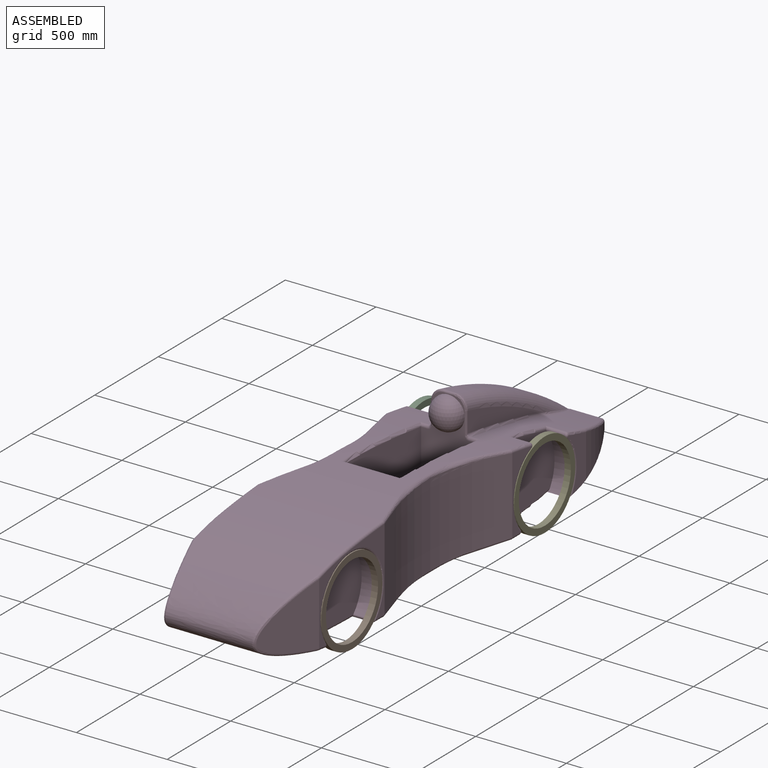
[diagram: assembled view]
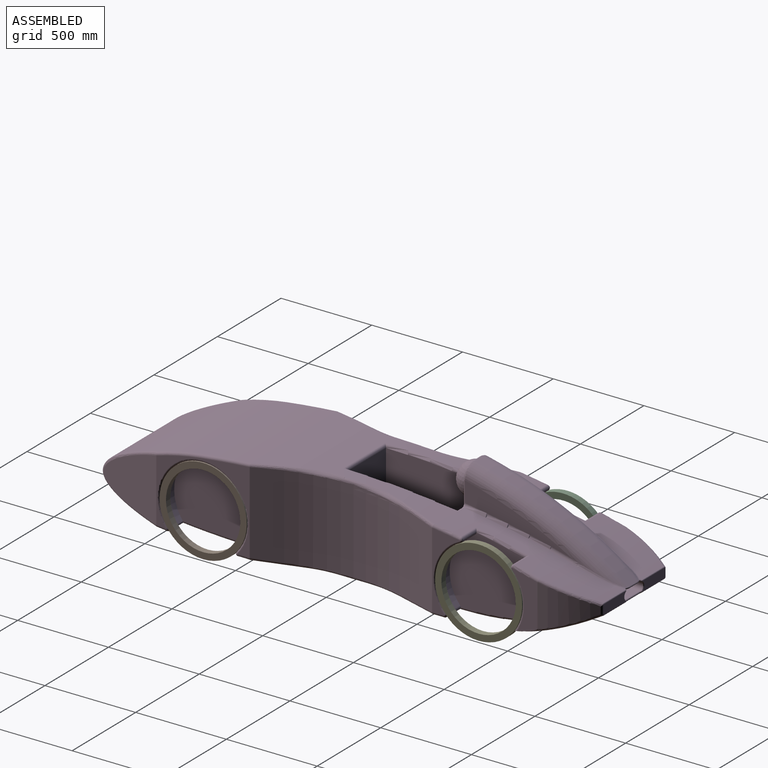
[diagram: assembled view, second angle]
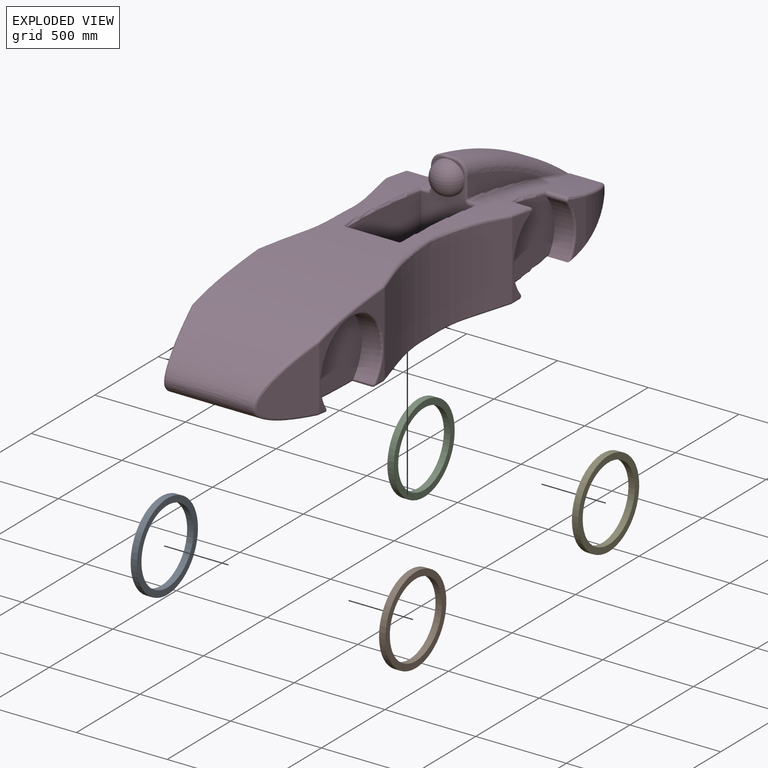
[diagram: exploded view]
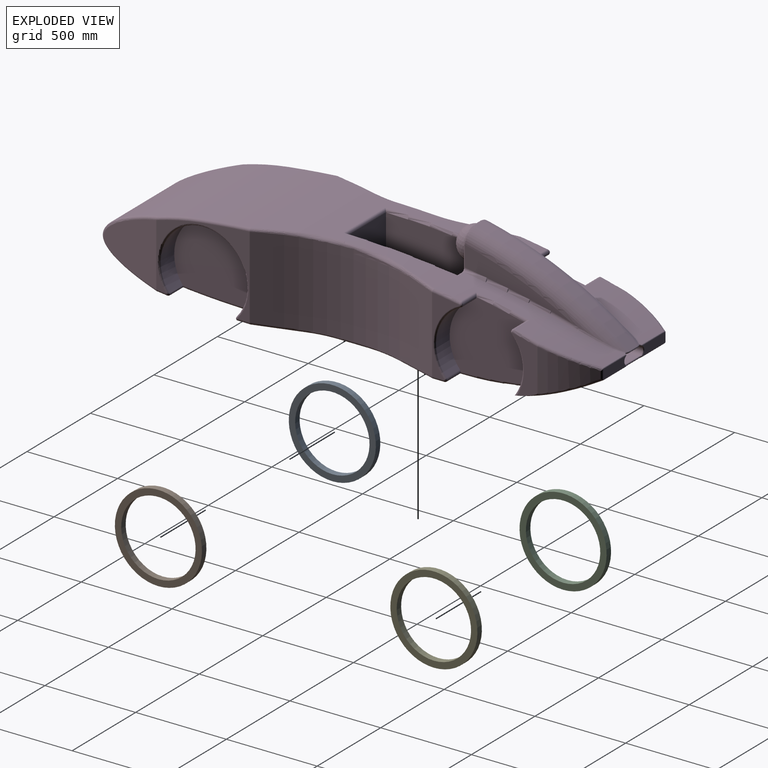
[diagram: exploded view, second angle]
ASSEMBLY  parts=5 mates=4
PART A: 4 faces, bbox 35x480x480 mm
  f0: cylinder r=205mm len=410mm, axis (-1,0,0), area 45081.9mm2, adj f2,f3
  f1: cylinder r=240mm len=480mm, axis (-1,0,0), area 52778.8mm2, adj f2,f3
  f2: plane 480x480mm, normal (1,0,0), area 48930.3mm2, adj f0,f1
  f3: plane 480x480mm, normal (-1,0,0), area 48930.3mm2, adj f0,f1
PART B: same geometry as A
PART C: same geometry as A
PART D: 210 faces, bbox 805.9x2862.7x834.4 mm
  f0: plane 178.41x52.82mm, normal (0,1,0), area 8788.2mm2, adj f128,f136,f141,f176,f179,f181
  f1: plane 178.41x52.82mm, normal (0,1,0), area 8788.2mm2, adj f129,f130,f137,f185,f187,f190
  f2: plane 180x92.58mm, normal (0,-1,0), area 2358.5mm2, adj f102,f103,f104,f105,f106,f122
  f3: cylinder r=4818.85mm len=2144.45mm, axis (-1,0,0), area 825983.9mm2, adj f5,f11,f12,f13,f15,f26,f27,f28
  f4: plane 306.64x139.59mm, normal (1,0,0), area 23866.4mm2, adj f11,f173,f174,f192,f193
  f5: cylinder r=1500mm len=670mm, axis (-1,0,0), area 261299mm2, adj f3,f6,f16,f29,f70,f75
  f6: extruded ~917.77x670mm, area 671919.7mm2, adj f5,f7,f17,f30,f68,f73,f78,f80
  f7: plane 1067.01x670mm, normal (0,0,-1), area 572183.1mm2, adj f6,f8,f81,f82,f83,f86,f87,f88
  f8: cylinder r=1691.26mm len=770.24mm, axis (-1,0,0), area 431236.4mm2, adj f7,f22,f35,f85,f96,f130,f132,f133
  f9: plane 510.99x451.65mm, normal (1,0,0), area 39733.7mm2, adj f12,f29,f30,f60,f71,f78,f152
  f10: plane 419.09x152.17mm, normal (1,0,0), area 16643.2mm2, adj f13,f54,f86,f169,f170,f171
  f11: torus R=4803.85mm, axis (1,0,0), area 3335.2mm2, adj f3,f4,f175,f191
  f12: torus R=4803.85mm, axis (1,0,0), area 6398.6mm2, adj f3,f9,f29,f59
  f13: torus R=4803.85mm, axis (1,0,0), area 3576.4mm2, adj f3,f10,f55,f172
  f14: plane 510.99x451.65mm, normal (-1,0,0), area 39733.7mm2, adj f15,f16,f17,f67,f76,f89,f157
  f15: torus R=4803.85mm, axis (-1,0,0), area 6398.6mm2, adj f3,f14,f16,f66
  f16: torus R=1485mm, axis (-1,0,0), area 5862.2mm2, adj f5,f14,f15,f77
  f17: bspline ~104.01x26.5mm, area 1281.6mm2, adj f6,f14,f74,f156
  f18: cylinder r=2192.05mm len=855.36mm, axis (-1,0,0), area 57023.5mm2, adj f52,f53,f104,f146
  f19: plane 491.28x300.41mm, normal (0,-1,0), area 121400.6mm2, adj f102,f106,f111,f113,f114,f115,f116,f120
  f20: plane 591.54x232.33mm, normal (1,0,0), area 39575.7mm2, adj f53,f106,f109
  f21: plane 480x393.83mm, normal (1,0,0), area 153385.1mm2, adj f22,f23,f26,f27,f28,f85,f87,f88
  f22: cylinder r=240mm len=303.96mm, axis (1,0,0), area 34684.2mm2, adj f8,f21,f26,f85,f173,f192
  f23: cylinder r=240mm len=373.05mm, axis (1,0,0), area 46383.6mm2, adj f21,f28,f88,f170
  f24: plane 480x404.06mm, normal (1,0,0), area 160054mm2, adj f25,f101,f150,f154
  f25: cylinder r=240mm len=480mm, axis (1,0,0), area 113911mm2, adj f24,f150,f151,f152,f153,f154
  f26: cylinder r=15mm len=120mm, axis (-1,0,0), area 4117mm2, adj f3,f21,f22,f27,f174,f175
  f27: torus R=4803.85mm, axis (1,0,0), area 6779.4mm2, adj f3,f21,f26,f28
  f28: cylinder r=15mm len=120mm, axis (1,0,0), area 4117mm2, adj f3,f21,f23,f27,f171,f172
  f29: torus R=1485mm, axis (1,0,0), area 5862.2mm2, adj f5,f9,f12,f72
  f30: bspline ~104.01x26.5mm, area 1281.6mm2, adj f6,f9,f69,f151
  f31: plane 306.64x139.59mm, normal (-1,0,0), area 23866.5mm2, adj f39,f165,f166,f183,f184
  f32: plane 419.09x152.17mm, normal (-1,0,0), area 16643.2mm2, adj f43,f61,f97,f161,f162,f163
  f33: plane 591.54x232.33mm, normal (-1,0,0), area 39575.7mm2, adj f52,f102,f108
  f34: plane 480x393.83mm, normal (-1,0,0), area 153385.1mm2, adj f35,f36,f40,f41,f42,f96,f98,f99
  f35: cylinder r=240mm len=303.96mm, axis (-1,0,0), area 34684.3mm2, adj f8,f34,f40,f96,f165,f184
  f36: cylinder r=240mm len=373.05mm, axis (-1,0,0), area 46383.6mm2, adj f34,f42,f99,f162
  f37: plane 480x404.06mm, normal (-1,0,0), area 160054mm2, adj f38,f100,f155,f159
  f38: cylinder r=240mm len=480mm, axis (-1,0,0), area 113911mm2, adj f37,f155,f156,f157,f158,f159
  f39: torus R=4803.85mm, axis (-1,0,0), area 3335.2mm2, adj f3,f31,f167,f180
  f40: cylinder r=15mm len=120mm, axis (1,0,0), area 4117mm2, adj f3,f34,f35,f41,f166,f167
  f41: torus R=4803.85mm, axis (-1,0,0), area 6779.4mm2, adj f3,f34,f40,f42
  f42: cylinder r=15mm len=120mm, axis (-1,0,0), area 4117mm2, adj f3,f34,f36,f41,f163,f164
  f43: torus R=4803.85mm, axis (-1,0,0), area 3576.4mm2, adj f3,f32,f62,f164
  f44: plane 355.74x344.56mm, normal (-0.97,-0.26,0), area 85237.4mm2, adj f73,f75,f76
  f45: plane 460.54x154.9mm, normal (-0.96,0.29,0), area 73840.6mm2, adj f65,f67,f91,f92,f197
  f46: plane 437.99x154.9mm, normal (-0.96,-0.29,0), area 69380.2mm2, adj f61,f63,f94,f198
  f47: cylinder r=714.03mm len=280.15mm, axis (0,0,-1), area 40354mm2, adj f178,f179,f183,f184
  f48: plane 355.74x344.56mm, normal (0.97,-0.26,0), area 85237.3mm2, adj f68,f70,f71
  f49: plane 437.99x154.9mm, normal (0.96,-0.29,0), area 69380.2mm2, adj f54,f56,f83,f204
  f50: plane 460.54x154.9mm, normal (0.96,0.29,0), area 73840.6mm2, adj f58,f60,f80,f81,f205
  f51: cylinder r=714.03mm len=280.15mm, axis (0,0,-1), area 40354mm2, adj f187,f188,f192,f193
  f52: torus R=2122.05mm, axis (-1,0,0), area 92490.6mm2, adj f18,f33,f103,f107,f148
  f53: torus R=2122.05mm, axis (1,0,0), area 92490.3mm2, adj f18,f20,f105,f110,f144
  f54: cylinder r=15mm len=419.09mm, axis (0,0,-1), area 1834.3mm2, adj f10,f49,f55,f84
  f55: sphere r=15mm, area 66.4mm2, adj f13,f54,f56
  f56: bspline ~579.25x187.02mm, area 5863.9mm2, adj f3,f49,f55,f207,f209
  f57: torus R=4803.85mm, axis (-1,0,0), area 3499.7mm2, adj f3,f208,f209
  f58: bspline ~581.51x187.66mm, area 5772.2mm2, adj f3,f50,f59,f206,f208
  f59: sphere r=15mm, area 66.2mm2, adj f12,f58,f60
  f60: cylinder r=15mm len=451.64mm, axis (0,0,1), area 1976.8mm2, adj f9,f50,f59,f79
  f61: cylinder r=15mm len=419.09mm, axis (0,0,1), area 1834.3mm2, adj f32,f46,f62,f95
  f62: sphere r=15mm, area 66.4mm2, adj f43,f61,f63
  f63: bspline ~579.25x187.02mm, area 5863.9mm2, adj f3,f46,f62,f200,f201
  f64: torus R=4803.85mm, axis (1,0,0), area 3499.7mm2, adj f3,f199,f201
  f65: bspline ~581.51x187.66mm, area 5772.2mm2, adj f3,f45,f66,f196,f199
  f66: sphere r=15mm, area 69.4mm2, adj f15,f65,f67
  f67: cylinder r=15mm len=451.64mm, axis (0,0,-1), area 1976.8mm2, adj f14,f45,f66,f90
  f68: bspline ~415.78x330.16mm, area 15663.3mm2, adj f6,f48,f69,f70
  f69: sphere r=15mm, area 55.9mm2, adj f30,f68,f71
  f70: bspline ~217.38x94.21mm, area 3394.4mm2, adj f5,f48,f68,f72
  f71: cylinder r=15mm len=344.55mm, axis (0,0,-1), area 1363.1mm2, adj f9,f48,f69,f72
  f72: sphere r=15mm, area 53.7mm2, adj f29,f70,f71
  f73: bspline ~415.78x329.23mm, area 15669.7mm2, adj f6,f44,f74,f75
  f74: sphere r=15mm, area 58mm2, adj f17,f73,f76
  f75: bspline ~217.38x94.21mm, area 3394.4mm2, adj f5,f44,f73,f77
  f76: cylinder r=15mm len=344.55mm, axis (0,0,1), area 1363.1mm2, adj f14,f44,f74,f77
  f77: sphere r=15mm, area 53.7mm2, adj f16,f75,f76
  f78: bspline ~144.05x16.22mm, area 1606.9mm2, adj f6,f9,f79,f153
  f79: sphere r=15mm, area 65.7mm2, adj f60,f78,f80
  f80: bspline ~122.7x49.92mm, area 895.9mm2, adj f6,f50,f79,f81
  f81: cylinder r=15mm len=300.89mm, axis (0.29,-0.96,0), area 4508mm2, adj f7,f50,f80,f203
  f82: cylinder r=15mm len=343.31mm, axis (0,-1,0), area 3030.7mm2, adj f7,f202,f203
  f83: cylinder r=15mm len=337.24mm, axis (-0.29,-0.96,0), area 5402.4mm2, adj f7,f49,f84,f202
  f84: sphere r=15mm, area 65.7mm2, adj f54,f83,f86
  f85: torus R=1676.26mm, axis (1,0,0), area 8541.3mm2, adj f8,f21,f22,f87
  f86: cylinder r=15mm len=65.02mm, axis (0,-1,0), area 1473.1mm2, adj f7,f10,f84,f168
  f87: cylinder r=15mm len=34.18mm, axis (0,-1,0), area 628.6mm2, adj f7,f21,f85,f88
  f88: cylinder r=15mm len=120mm, axis (1,0,0), area 3700.2mm2, adj f7,f21,f23,f87,f168,f169
  f89: bspline ~144.05x16.22mm, area 1606.9mm2, adj f6,f14,f90,f158
  f90: sphere r=15mm, area 65.7mm2, adj f67,f89,f91
  f91: bspline ~77.14x36.24mm, area 895.9mm2, adj f6,f45,f90,f92
  f92: cylinder r=15mm len=300.89mm, axis (0.29,0.96,0), area 4508mm2, adj f7,f45,f91,f194
  f93: cylinder r=15mm len=343.31mm, axis (0,1,0), area 3030.7mm2, adj f7,f194,f195
  f94: cylinder r=15mm len=337.24mm, axis (-0.29,0.96,0), area 5402.4mm2, adj f7,f46,f95,f195
  f95: sphere r=15mm, area 65.7mm2, adj f61,f94,f97
  f96: torus R=1676.26mm, axis (-1,0,0), area 8541.3mm2, adj f8,f34,f35,f98
  f97: cylinder r=15mm len=65.02mm, axis (0,-1,0), area 1473.1mm2, adj f7,f32,f95,f160
  f98: cylinder r=15mm len=34.18mm, axis (0,-1,0), area 628.6mm2, adj f7,f34,f96,f99
  f99: cylinder r=15mm len=120mm, axis (-1,0,0), area 3700.2mm2, adj f7,f34,f36,f98,f160,f161
  f100: bspline ~436.08x38.71mm, area 8894mm2, adj f6,f37,f155,f159
  f101: bspline ~436.08x38.71mm, area 8894mm2, adj f6,f24,f150,f154
  f102: cylinder r=10mm len=112.33mm, axis (0,0,1), area 1764.4mm2, adj f2,f19,f33,f103,f115
  f103: bspline ~82.13x72.08mm, area 1810.2mm2, adj f2,f52,f102,f104
  f104: cylinder r=10mm len=60mm, axis (-1,0,0), area 1073.1mm2, adj f2,f18,f103,f105
  f105: bspline ~82.13x78.1mm, area 1810mm2, adj f2,f53,f104,f106
  f106: cylinder r=10mm len=112.33mm, axis (0,0,1), area 1764.4mm2, adj f2,f19,f20,f105,f121
  f107: bspline ~304.84x106.37mm, area 4610.8mm2, adj f3,f52,f108,f147,f149
  f108: torus R=4833.85mm, axis (-1,0,0), area 14094mm2, adj f3,f33,f107,f115
  f109: torus R=4833.85mm, axis (1,0,0), area 14094mm2, adj f3,f20,f110,f121
  f110: bspline ~304.84x106.37mm, area 4610.8mm2, adj f3,f53,f109,f140,f142
  f111: plane 600.14x425.08mm, normal (1,0,0), area 245522.1mm2, adj f19,f112,f114,f116,f117
  f112: plane 425.22x300mm, normal (0,1,0), area 127565.6mm2, adj f111,f113,f114,f117,f118,f119
  f113: plane 600.14x425.08mm, normal (-1,0,0), area 245522.1mm2, adj f19,f112,f114,f119,f120
  f114: plane 600x300mm, normal (0,0,1), area 180000mm2, adj f19,f111,f112,f113
  f115: bspline ~30.99x25mm, area 643.8mm2, adj f19,f102,f108,f116
  f116: cylinder r=15mm len=50mm, axis (-1,0,0), area 1026.6mm2, adj f3,f19,f111,f115,f117
  f117: torus R=4803.85mm, axis (1,0,0), area 14474.7mm2, adj f3,f111,f112,f116,f118
  f118: cylinder r=15mm len=330mm, axis (-1,0,0), area 7384.2mm2, adj f3,f112,f117,f119
  f119: torus R=4803.85mm, axis (-1,0,0), area 14474.7mm2, adj f3,f112,f113,f118,f120
  f120: cylinder r=15mm len=50mm, axis (-1,0,0), area 1026.6mm2, adj f3,f19,f113,f119,f121
  f121: bspline ~30.99x25mm, area 643.8mm2, adj f19,f106,f109,f120
  f122: sphere r=90mm, area 50893.8mm2, adj f2,f19
  f123: plane 100x91.77mm, normal (0,0,-1), area 9109.3mm2, adj f124,f126,f127,f142,f144,f146,f148,f149
  f124: cylinder r=24.74mm len=95mm, axis (0,1,0), area 7275.9mm2, adj f123,f125,f127,f129,f132,f139,f140
  f125: plane 100x89mm, normal (0,0,1), area 8899.8mm2, adj f124,f126,f127,f133
  f126: cylinder r=24.74mm len=95mm, axis (0,1,0), area 7275.9mm2, adj f123,f125,f127,f128,f134,f145,f147
  f127: plane 149.48x49.48mm, normal (0,1,0), area 6871.3mm2, adj f123,f124,f125,f126
  f128: torus R=29.74mm, axis (0,1,0), area 456.2mm2, adj f0,f126,f135,f143
  f129: torus R=29.74mm, axis (0,1,0), area 456.2mm2, adj f1,f124,f131,f138
  f130: cylinder r=5mm len=175.13mm, axis (-1,0,0), area 961.4mm2, adj f1,f8,f131,f190
  f131: sphere r=5mm, area 24.9mm2, adj f129,f130,f132
  f132: bspline ~20.96x16.82mm, area 159.5mm2, adj f8,f124,f131,f133
  f133: cylinder r=5mm len=100mm, axis (-1,0,0), area 1336.4mm2, adj f8,f125,f132,f134
  f134: bspline ~20.94x17.46mm, area 159.5mm2, adj f8,f126,f133,f135
  f135: sphere r=5mm, area 24.9mm2, adj f128,f134,f136
  f136: cylinder r=5mm len=175.13mm, axis (-1,0,0), area 961.4mm2, adj f0,f8,f135,f181
  f137: cylinder r=5mm len=173.22mm, axis (-1,0,0), area 1082mm2, adj f1,f3,f138,f185
  f138: sphere r=5mm, area 34mm2, adj f129,f137,f139
  f139: bspline ~24.66x21.45mm, area 123.1mm2, adj f3,f124,f138,f140
  f140: bspline ~23.8x17.54mm, area 57.6mm2, adj f110,f124,f139,f142
  f141: cylinder r=5mm len=173.22mm, axis (-1,0,0), area 1082mm2, adj f0,f3,f143,f176
  f142: bspline ~18.77x17.28mm, area 75mm2, adj f110,f123,f140,f144
  f143: sphere r=5mm, area 34mm2, adj f128,f141,f145
  f144: bspline ~28.65x18.7mm, area 199.6mm2, adj f53,f123,f142,f146
  f145: bspline ~24.66x21.45mm, area 123.1mm2, adj f3,f126,f143,f147
  f146: cylinder r=5mm len=60mm, axis (-1,0,0), area 747.1mm2, adj f18,f123,f144,f148
  f147: bspline ~23.76x17.5mm, area 57.6mm2, adj f107,f126,f145,f149
  f148: bspline ~31x18.42mm, area 199.7mm2, adj f52,f123,f146,f149
  f149: bspline ~16.45x14.28mm, area 75mm2, adj f107,f123,f147,f148
  f150: cylinder r=10mm len=115mm, axis (-1,0,0), area 2417.1mm2, adj f6,f24,f25,f101,f151
  f151: bspline ~25.58x24.19mm, area 412.9mm2, adj f25,f30,f150,f152
  f152: torus R=250mm, axis (1,0,0), area 17100.2mm2, adj f9,f25,f151,f153
  f153: bspline ~28.01x24.05mm, area 410.1mm2, adj f25,f78,f152,f154
  f154: cylinder r=10mm len=115mm, axis (-1,0,0), area 2405.7mm2, adj f6,f24,f25,f101,f153
  f155: cylinder r=10mm len=115mm, axis (-1,0,0), area 2417.1mm2, adj f6,f37,f38,f100,f156
  f156: bspline ~25.76x24.85mm, area 412.9mm2, adj f17,f38,f155,f157
  f157: torus R=250mm, axis (-1,0,0), area 17100.2mm2, adj f14,f38,f156,f158
  f158: bspline ~27.16x23.58mm, area 410.1mm2, adj f38,f89,f157,f159
  f159: cylinder r=10mm len=115mm, axis (-1,0,0), area 2405.7mm2, adj f6,f37,f38,f100,f158
  f160: bspline ~15.82x15mm, area 163.4mm2, adj f97,f99,f161
  f161: torus R=5mm, axis (-1,0,0), area 125.6mm2, adj f32,f99,f160,f162
  f162: torus R=250mm, axis (-1,0,0), area 7044mm2, adj f32,f36,f161,f163
  f163: torus R=5mm, axis (-1,0,0), area 172.8mm2, adj f32,f42,f162,f164
  f164: bspline ~17.31x15mm, area 172.2mm2, adj f42,f43,f163
  f165: torus R=250mm, axis (-1,0,0), area 5119.7mm2, adj f31,f35,f166,f184
  f166: torus R=5mm, axis (-1,0,0), area 172.8mm2, adj f31,f40,f165,f167
  f167: bspline ~18.04x15mm, area 172.2mm2, adj f39,f40,f166
  f168: bspline ~18.23x15mm, area 163.4mm2, adj f86,f88,f169
  f169: torus R=5mm, axis (1,0,0), area 125.6mm2, adj f10,f88,f168,f170
  f170: torus R=250mm, axis (1,0,0), area 7044mm2, adj f10,f23,f169,f171
  f171: torus R=5mm, axis (1,0,0), area 172.8mm2, adj f10,f28,f170,f172
  f172: bspline ~21.5x15mm, area 172.2mm2, adj f13,f28,f171
  f173: torus R=250mm, axis (1,0,0), area 5119.7mm2, adj f4,f22,f174,f192
  f174: torus R=5mm, axis (1,0,0), area 172.8mm2, adj f4,f26,f173,f175
  f175: bspline ~18.04x15mm, area 172.2mm2, adj f11,f26,f174
  f176: bspline ~9.08x5.83mm, area 30.1mm2, adj f0,f141,f177,f178
  f177: bspline ~15.64x11.59mm, area 32.5mm2, adj f176,f178,f179
  f178: bspline ~344.23x124.74mm, area 6903mm2, adj f3,f47,f176,f177,f180
  f179: cylinder r=15mm len=51.56mm, axis (0,0,-1), area 705.8mm2, adj f0,f47,f177,f182
  f180: sphere r=15mm, area 18.1mm2, adj f39,f178,f183
  f181: bspline ~8.32x5.39mm, area 21.2mm2, adj f0,f136,f182,f184
  f182: bspline ~12.89x9.54mm, area 28.8mm2, adj f179,f181,f184
  f183: cylinder r=15mm len=233.61mm, axis (0,0,-1), area 417.2mm2, adj f31,f47,f180,f184
  f184: bspline ~453.6x172.03mm, area 8710.8mm2, adj f8,f31,f35,f47,f165,f181,f182,f183
  f185: bspline ~9.08x5.83mm, area 30.1mm2, adj f1,f137,f186,f188
  f186: bspline ~15.64x11.59mm, area 32.5mm2, adj f185,f187,f188
  f187: cylinder r=15mm len=51.56mm, axis (0,0,-1), area 705.8mm2, adj f1,f51,f186,f189
  f188: bspline ~344.23x124.74mm, area 6903mm2, adj f3,f51,f185,f186,f191
  f189: bspline ~15.75x10.47mm, area 28.8mm2, adj f187,f190,f192
  f190: bspline ~8.32x5.39mm, area 21.2mm2, adj f1,f130,f189,f192
  f191: sphere r=15mm, area 18.1mm2, adj f11,f188,f193
  f192: bspline ~453.6x172.03mm, area 8710.8mm2, adj f4,f8,f22,f51,f173,f189,f190,f193
  f193: cylinder r=15mm len=233.61mm, axis (0,0,-1), area 417.2mm2, adj f4,f51,f191,f192
  f194: bspline ~359.59x67.84mm, area 6519.6mm2, adj f92,f93,f195,f197
  f195: bspline ~359.59x67.84mm, area 6519.6mm2, adj f93,f94,f194,f198
  f196: bspline ~359.67x52.86mm, area 171.6mm2, adj f65,f197,f199,f200
  f197: cylinder r=1250mm len=460.54mm, axis (0,0,-1), area 161431mm2, adj f45,f194,f196,f198,f200
  f198: cylinder r=1250mm len=437.99mm, axis (0,0,-1), area 153522.5mm2, adj f46,f195,f197,f200
  f199: bspline ~367.78x68.91mm, area 6611.9mm2, adj f64,f65,f196,f200,f201
  f200: bspline ~345.7x52.76mm, area 4156.4mm2, adj f63,f196,f197,f198,f199,f201
  f201: bspline ~365.37x68.44mm, area -24.8mm2, adj f63,f64,f199,f200
  f202: bspline ~359.59x67.84mm, area 6519.6mm2, adj f82,f83,f203,f204
  f203: bspline ~359.59x67.84mm, area 6519.6mm2, adj f81,f82,f202,f205
  f204: cylinder r=1250mm len=437.99mm, axis (0,0,1), area 153522.5mm2, adj f49,f202,f205,f207
  f205: cylinder r=1250mm len=460.54mm, axis (0,0,1), area 161431mm2, adj f50,f203,f204,f206,f207
  f206: bspline ~359.67x52.86mm, area 171.6mm2, adj f58,f205,f207,f208
  f207: bspline ~345.7x52.76mm, area 4156.4mm2, adj f56,f204,f205,f206,f208,f209
  f208: bspline ~367.78x68.91mm, area 6611.9mm2, adj f57,f58,f206,f207,f209
  f209: bspline ~365.37x68.44mm, area -24.6mm2, adj f56,f57,f207,f208
PART E: same geometry as A
PLACE A t=(-637.33,-634.48,264)mm
PLACE B t=(27.67,-634.48,264)mm
PLACE C t=(-637.33,883.52,264)mm
PLACE D t=(-287.33,756.27,138.13)mm fixed
PLACE E t=(27.67,883.52,264)mm
MATE fastened A.f0 <-> D.f25  axis (1,0,0) through (-602.33,-634.48,264)mm
MATE fastened B.f0 <-> D.f25  axis (-1,0,0) through (27.67,-634.48,264)mm
MATE fastened C.f0 <-> D.f22  axis (1,0,0) through (-602.33,883.52,264)mm
MATE fastened E.f0 <-> D.f22  axis (-1,0,0) through (27.67,883.52,264)mm
